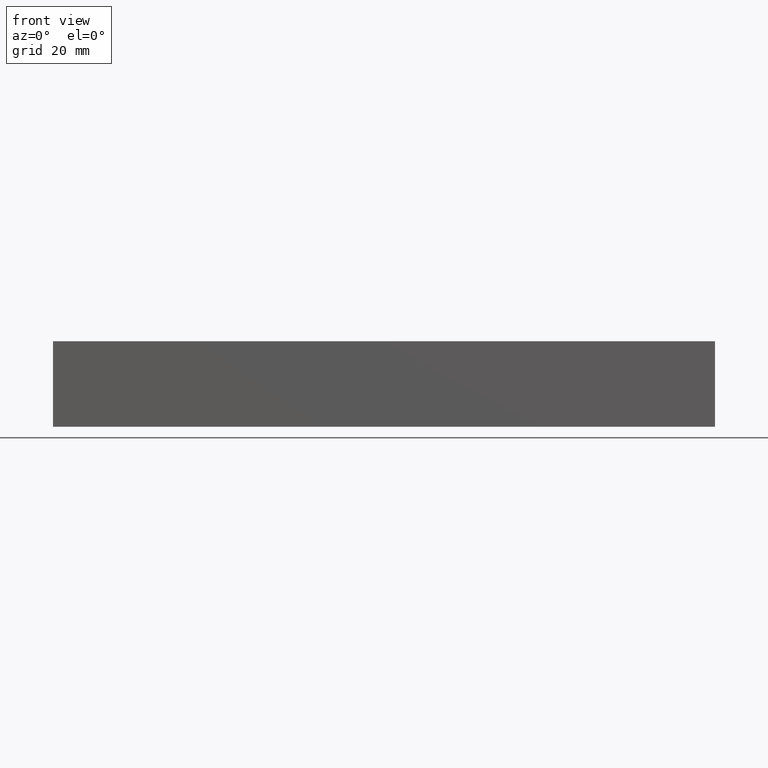
[diagram: clean part render]
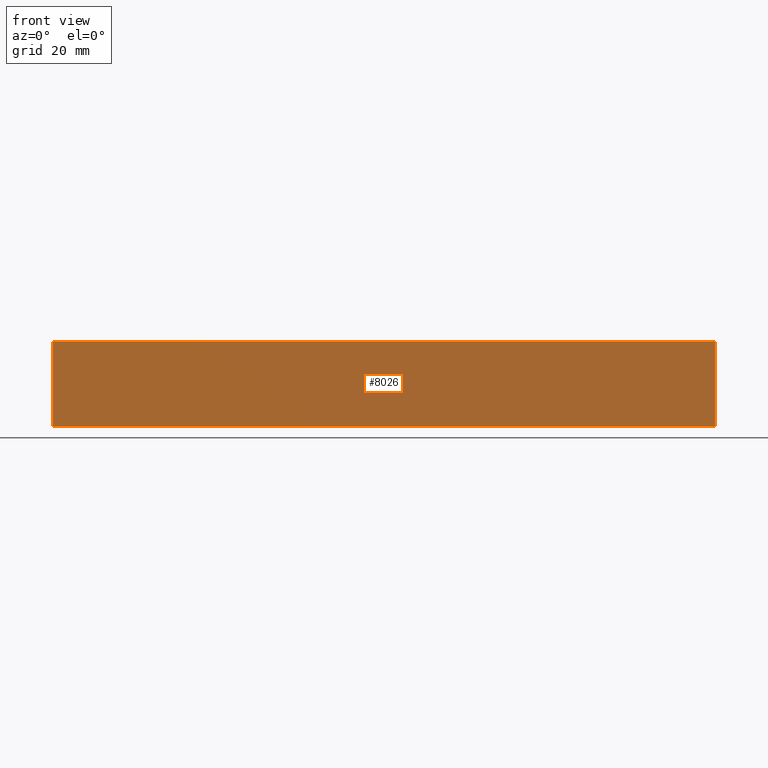
[diagram: same view with one face highlighted and labeled with its STEP entity id]
A machine part, front view. The second image highlights one B-rep face of the part: STEP entity #8026.
In plain terms, the highlighted planar face has unit normal (0, -1, 0).
Its self-contained STEP definition (entity closure, byte-faithful):
#495=PLANE('',#8452);
#894=FACE_OUTER_BOUND('',#1331,.T.);
#1331=EDGE_LOOP('',(#7135,#7136,#7137,#7138));
#2134=LINE('',#13910,#2907);
#2138=LINE('',#13918,#2911);
#2139=LINE('',#13920,#2912);
#2140=LINE('',#13921,#2913);
#2907=VECTOR('',#10037,10.);
#2911=VECTOR('',#10045,10.);
#2912=VECTOR('',#10048,10.);
#2913=VECTOR('',#10049,10.);
#3882=VERTEX_POINT('',#13907);
#3883=VERTEX_POINT('',#13909);
#3884=VERTEX_POINT('',#13914);
#3885=VERTEX_POINT('',#13916);
#4986=EDGE_CURVE('',#3882,#3883,#2134,.T.);
#4990=EDGE_CURVE('',#3884,#3885,#2138,.T.);
#4991=EDGE_CURVE('',#3882,#3884,#2139,.T.);
#4992=EDGE_CURVE('',#3883,#3885,#2140,.T.);
#7135=ORIENTED_EDGE('',*,*,#4991,.T.);
#7136=ORIENTED_EDGE('',*,*,#4990,.T.);
#7137=ORIENTED_EDGE('',*,*,#4992,.F.);
#7138=ORIENTED_EDGE('',*,*,#4986,.F.);
#8026=ADVANCED_FACE('',(#894),#495,.T.);
#8452=AXIS2_PLACEMENT_3D('',#13919,#10046,#10047);
#10037=DIRECTION('',(0.,0.,1.));
#10045=DIRECTION('',(0.,0.,1.));
#10046=DIRECTION('center_axis',(0.,-1.,0.));
#10047=DIRECTION('ref_axis',(1.,0.,0.));
#10048=DIRECTION('',(1.,0.,0.));
#10049=DIRECTION('',(1.,0.,0.));
#13907=CARTESIAN_POINT('',(0.,0.,0.));
#13909=CARTESIAN_POINT('',(0.,0.,25.4));
#13910=CARTESIAN_POINT('',(0.,0.,0.));
#13914=CARTESIAN_POINT('',(196.85,0.,0.));
#13916=CARTESIAN_POINT('',(196.85,0.,25.4));
#13918=CARTESIAN_POINT('',(196.85,0.,0.));
#13919=CARTESIAN_POINT('Origin',(0.,0.,0.));
#13920=CARTESIAN_POINT('',(0.,0.,0.));
#13921=CARTESIAN_POINT('',(0.,0.,25.4));